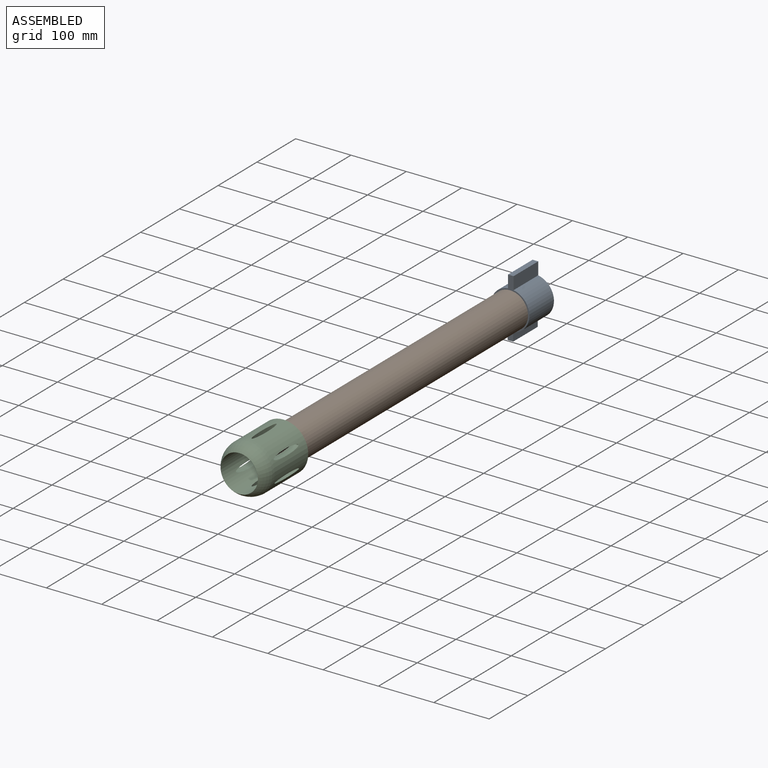
[diagram: assembled view]
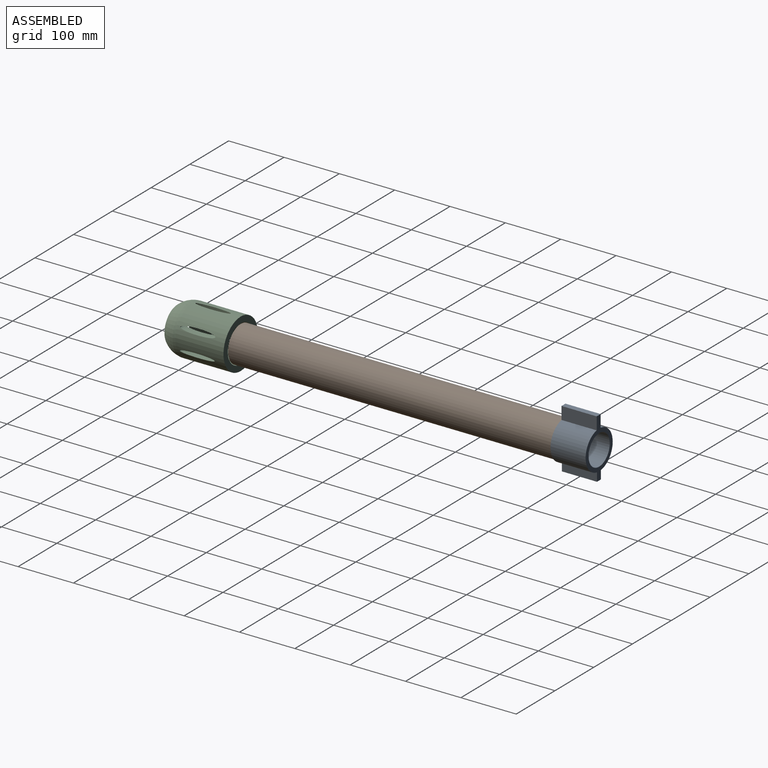
[diagram: assembled view, second angle]
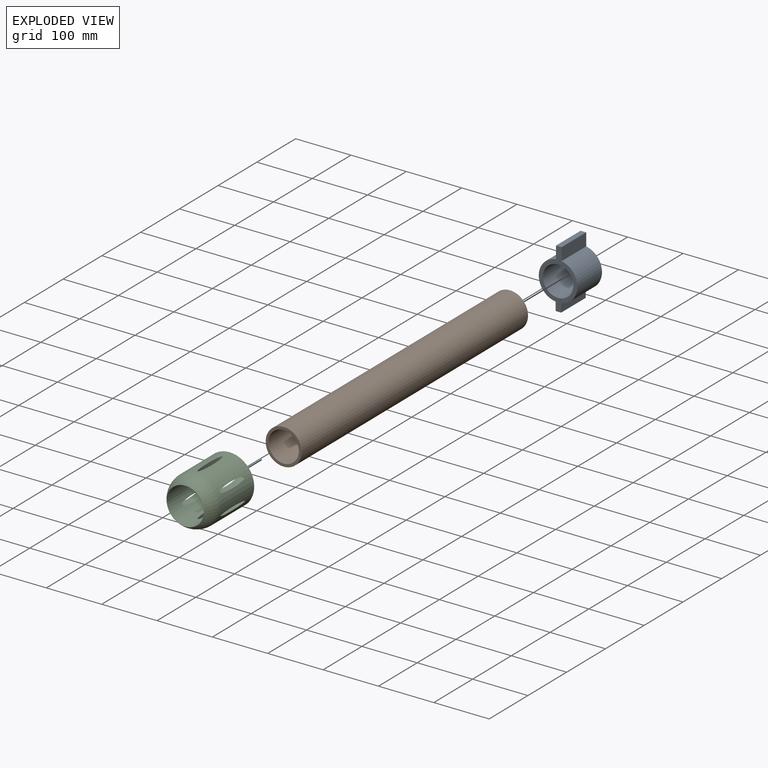
[diagram: exploded view]
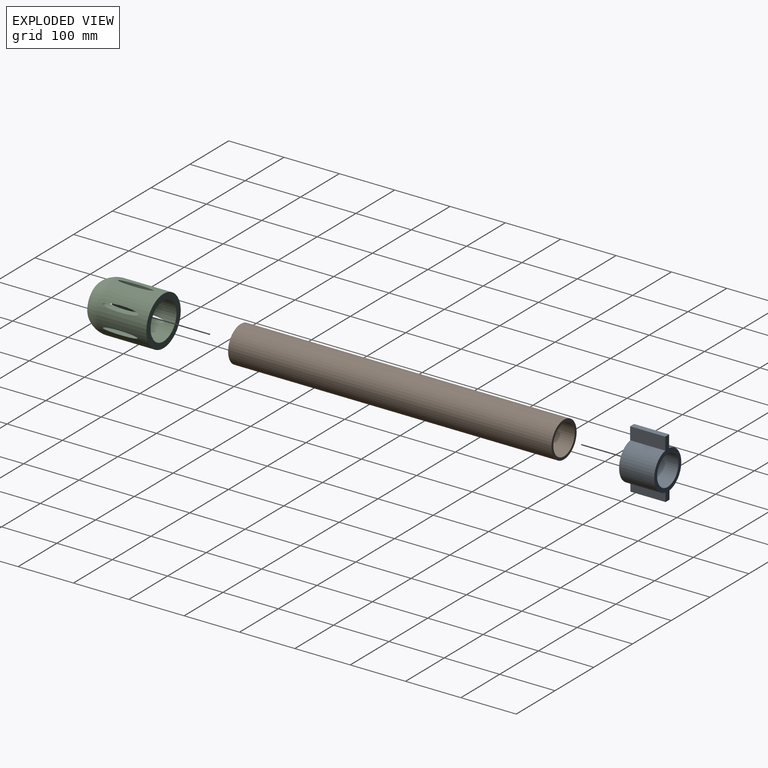
[diagram: exploded view, second angle]
ASSEMBLY  parts=3 mates=2
PART A: 11 faces, bbox 69.9x63.5x107.1 mm
  f0: plane 63.5x22.42mm, normal (-1,0,0), area 1423.5mm2, adj f1,f7,f8,f9
  f1: cylinder r=34.92mm len=69.37mm, axis (0,1,0), area 6448.7mm2, adj f0,f2,f8,f9
  f2: plane 63.5x15.28mm, normal (-1,0,0), area 970mm2, adj f1,f3,f8,f9
  f3: plane 63.5x10.08mm, normal (0,0,-1), area 640.3mm2, adj f2,f4,f8,f9
  f4: plane 63.5x15.45mm, normal (1,0,0), area 981.1mm2, adj f3,f5,f8,f9
  f5: cylinder r=34.92mm len=68.8mm, axis (0,1,0), area 6200mm2, adj f4,f6,f8,f9
  f6: plane 63.5x22.81mm, normal (1,0,0), area 1448.4mm2, adj f5,f7,f8,f9
  f7: plane 63.5x10.08mm, normal (0,0,1), area 640.3mm2, adj f0,f6,f8,f9
  f8: plane 107.06x69.85mm, normal (0,-1,0), area 1854.7mm2, adj f0,f1,f2,f3,f4,f5,f6,f7
  f9: plane 107.06x69.85mm, normal (0,1,0), area 1854.7mm2, adj f0,f1,f2,f3,f4,f5,f6,f7
  f10: cylinder r=27.38mm len=63.5mm, axis (0,-1,0), area 10924.6mm2, adj f8,f9
PART B: 4 faces, bbox 65x584.2x65 mm
  f0: cylinder r=27.5mm len=584.2mm, axis (0,1,0), area 100926mm2, adj f2,f3
  f1: cylinder r=32.5mm len=584.2mm, axis (0,1,0), area 119295.7mm2, adj f2,f3
  f2: plane 65x65mm, normal (0,-1,0), area 943.3mm2, adj f0,f1
  f3: plane 65x65mm, normal (0,1,0), area 943.3mm2, adj f0,f1
PART C: 10 faces, bbox 88.9x114.3x88.9 mm
  f0: cylinder r=33.5mm len=114.3mm, axis (0,1,0), area 21177.3mm2, adj f2,f3,f4,f5,f6,f7,f8,f9
  f1: cylinder r=44.45mm len=88.9mm, axis (0,1,0), area 21549.4mm2, adj f2,f3,f4,f5,f6,f7,f8,f9
  f2: plane 88.9x88.9mm, normal (0,1,0), area 2681.5mm2, adj f0,f1
  f3: extruded ~63.5x19.21mm, area 1725.4mm2, adj f0,f1
  f4: extruded ~63.5x19.21mm, area 1728mm2, adj f0,f1
  f5: extruded ~63.5x17.1mm, area 1619.7mm2, adj f0,f1
  f6: extruded ~63.5x17.1mm, area 1617.7mm2, adj f0,f1
  f7: torus R=3.81mm, axis (0,-1,0), area 7817.4mm2, adj f0,f1
  f8: extruded ~63.5x11.28mm, area 1439.1mm2, adj f0,f1
  f9: extruded ~63.37x11.28mm, area 1437.9mm2, adj f0,f1
PLACE A t=(-19.99,345.72,97.74)mm
PLACE B t=(-19.99,282.22,97.74)mm
PLACE C t=(-19.99,-301.98,97.74)mm
MATE fastened A.f5 <-> B.f0  axis (0,-1,0) through (-19.99,282.22,97.74)mm
MATE fastened C.f1 <-> B.f0  axis (0,1,0) through (-19.99,-301.98,97.74)mm
